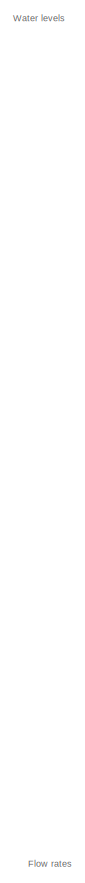
[diagram: root canvas - part 1/2, right side, full height]
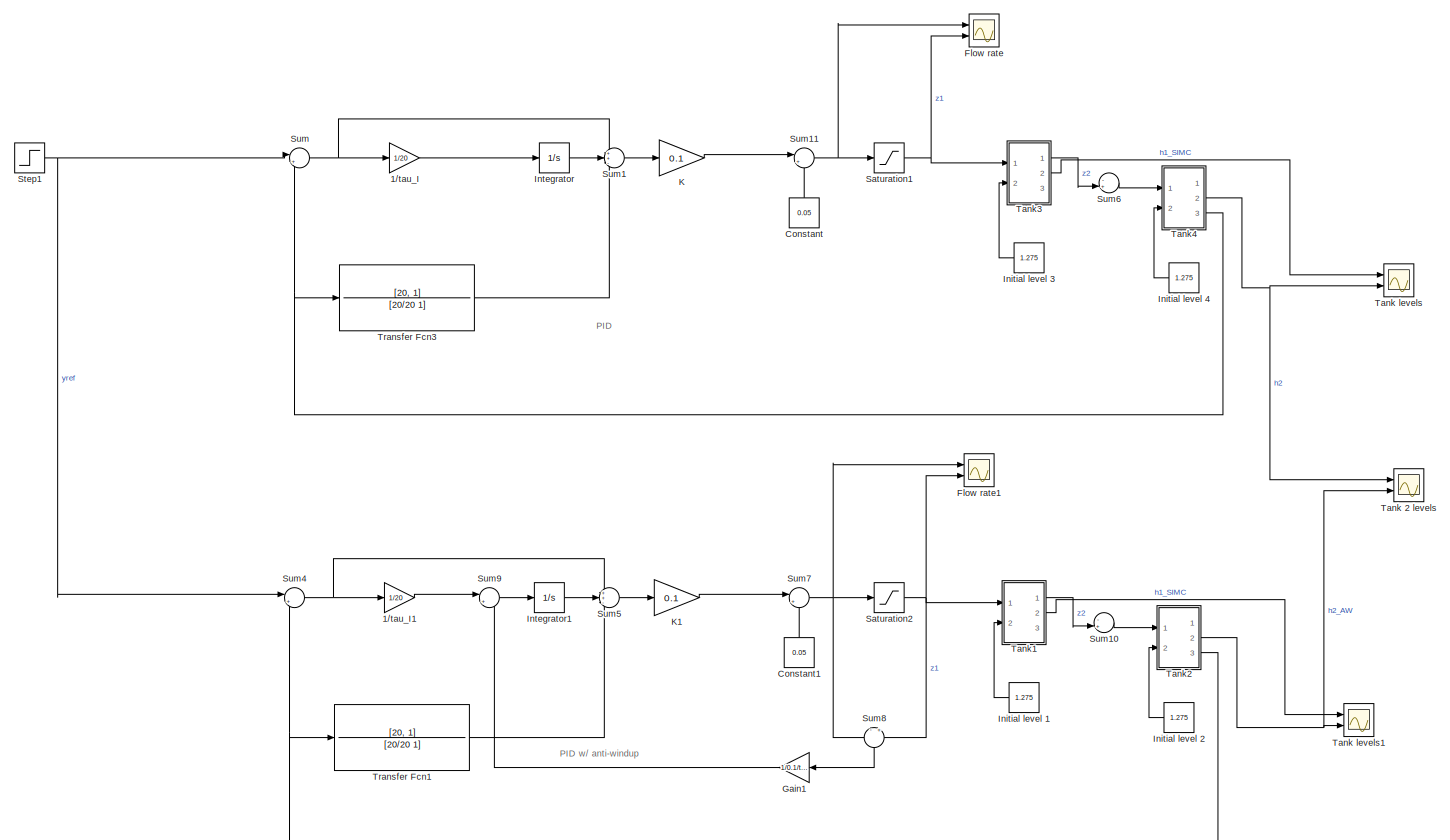
[diagram: root canvas - part 2/2, left side, full height]
MODEL slx_a2e490d1ccdc
KIND model
CONFIG AbsTol = auto
CONFIG EnableMultiTasking = off
CONFIG FixedStep = 0.1
CONFIG MaxStep = auto
CONFIG MinStep = auto
CONFIG RelTol = 1e-3
CONFIG SampleTimeConstraint = Unconstrained
CONFIG SolverName = ode23s
CONFIG StartTime = 0.0
CONFIG StopTime = 60*10
WORKSPACE source: MATLAB code (in-file)
WORKSPACE A1 = 1
WORKSPACE a1 = 0.1*0.1  (= 0.01)
WORKSPACE A2 = A1  (= 1)
WORKSPACE a2 = a1  (= 0.01)
WORKSPACE h10 = 1
WORKSPACE h20 = 1
BLOCK [Gain] 1//tau_I
  Gain = 1/20
BLOCK [Gain] 1//tau_I1
  Gain = 1/20
BLOCK [Constant] Constant
  NameLocation = right
  Value = 0.05
BLOCK [Constant] Constant1
  NameLocation = right
  Value = 0.05
BLOCK [Scope] Flow rate
  Floating = off
  NumInputPorts = 2
  Ports = [2]
  ScopeSpecificationString = Simulink.scopes.TimeScopeBlockCfg('CurrentConfiguration', extmgr.ConfigurationSet(extmgr.Configuration('Core','General UI',true),extmgr.Configuration('Core','Source UI',true),extmgr.Configuration('Sources','WiredSimulink',true),extmgr.Configuration('Visuals','Time Domain',true,'SerializedDisplays',{struct('MinYLimReal','0.03312','MaxYLimReal','0.13372','YLabelReal','','MinYLimMag','0.03312','MaxYL...<+1754ch>
BLOCK [Scope] Flow rate1
  Floating = off
  NumInputPorts = 2
  Ports = [2]
  ScopeSpecificationString = Simulink.scopes.TimeScopeBlockCfg('CurrentConfiguration', extmgr.ConfigurationSet(extmgr.Configuration('Core','General UI',true),extmgr.Configuration('Core','Source UI',true),extmgr.Configuration('Sources','WiredSimulink',true,'DataLoggingVariableName','ScopeData2'),extmgr.Configuration('Visuals','Time Domain',true,'SerializedDisplays',{struct('MinYLimReal','0.04163','MaxYLimReal','0.10897','YLabe...<+1430ch>
BLOCK [Gain] Gain1
  Gain = 1/0.1/tau_t
  NameLocation = top
BLOCK [Constant] Initial level 1
  NameLocation = top
  Value = 1.275
BLOCK [Constant] Initial level 2
  NameLocation = top
  Value = 1.275
BLOCK [Constant] Initial level 3
  NameLocation = top
  Value = 1.275
BLOCK [Constant] Initial level 4
  NameLocation = top
  Value = 1.275
BLOCK [Integrator] Integrator
  Ports = [1, 1]
BLOCK [Integrator] Integrator1
  Ports = [1, 1]
BLOCK [Gain] K
  Gain = 0.1
BLOCK [Gain] K1
  Gain = 0.1
BLOCK [Saturate] Saturation1
  LowerLimit = 0
  UpperLimit = 0.065
BLOCK [Saturate] Saturation2
  LowerLimit = 0
  UpperLimit = 0.065
BLOCK [Step] Step1
  After = 0.4
  SampleTime = 0
  Time = 120
BLOCK [Sum] Sum
  Inputs = |+-
  Ports = [2, 1]
BLOCK [Sum] Sum1
  Inputs = ++-
  Ports = [3, 1]
BLOCK [Sum] Sum10
  Inputs = -+|
  Ports = [2, 1]
BLOCK [Sum] Sum11
  Inputs = |++
  Ports = [2, 1]
BLOCK [Sum] Sum4
  Inputs = |+-
  Ports = [2, 1]
BLOCK [Sum] Sum5
  Inputs = ++-
  Ports = [3, 1]
BLOCK [Sum] Sum6
  Inputs = -+|
  Ports = [2, 1]
BLOCK [Sum] Sum7
  Inputs = |++
  Ports = [2, 1]
BLOCK [Sum] Sum8
  Inputs = -|+
  NameLocation = left
  Ports = [2, 1]
BLOCK [Sum] Sum9
  Inputs = |++
  Ports = [2, 1]
BLOCK [Scope] Tank 2 levels
  Floating = off
  NumInputPorts = 2
  Ports = [2]
  ScopeSpecificationString = Simulink.scopes.TimeScopeBlockCfg('CurrentConfiguration', extmgr.ConfigurationSet(extmgr.Configuration('Core','General UI',true),extmgr.Configuration('Core','Source UI',true),extmgr.Configuration('Sources','WiredSimulink',true,'DataLoggingVariableName','ScopeData4'),extmgr.Configuration('Visuals','Time Domain',true,'SerializedDisplays',{struct('MinYLimReal','1.202','MaxYLimReal','1.93192','YLabelR...<+1423ch>
BLOCK [Scope] Tank levels
  Floating = off
  NumInputPorts = 2
  Ports = [2]
  ScopeSpecificationString = Simulink.scopes.TimeScopeBlockCfg('CurrentConfiguration', extmgr.ConfigurationSet(extmgr.Configuration('Core','General UI',true),extmgr.Configuration('Core','Source UI',true),extmgr.Configuration('Sources','WiredSimulink',true,'DataLoggingVariableName','ScopeData1'),extmgr.Configuration('Visuals','Time Domain',true,'SerializedDisplays',{struct('MinYLimReal','1.17961','MaxYLimReal','2.13315','YLabe...<+1450ch>
BLOCK [Scope] Tank levels1
  Floating = off
  NumInputPorts = 2
  Ports = [2]
  ScopeSpecificationString = Simulink.scopes.TimeScopeBlockCfg('CurrentConfiguration', extmgr.ConfigurationSet(extmgr.Configuration('Core','General UI',true),extmgr.Configuration('Core','Source UI',true),extmgr.Configuration('Sources','WiredSimulink',true,'DataLoggingVariableName','ScopeData3'),extmgr.Configuration('Visuals','Time Domain',true,'SerializedDisplays',{struct('MinYLimReal','1.19802','MaxYLimReal','1.96782','YLabe...<+1455ch>
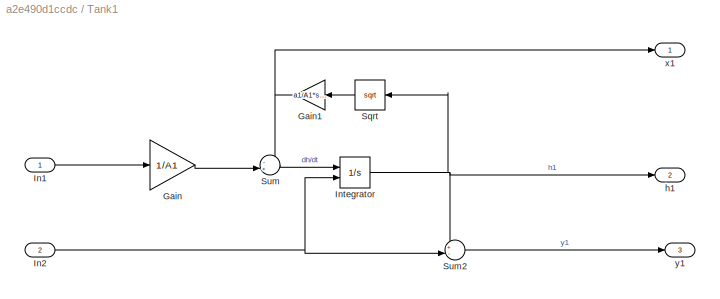
BLOCK [SubSystem] Tank1
  Ports = [2, 3]
  RequestExecContextInheritance = off
BLOCK [Gain] Tank1/Gain
  Gain = 1/A1
BLOCK [Gain] Tank1/Gain1
  Gain = a1/A1*sqrt(2*9.8)
  NameLocation = top
BLOCK [Inport] Tank1/In1
BLOCK [Inport] Tank1/In2
  Port = 2
BLOCK [Integrator] Tank1/Integrator
  InitialCondition = h10
  InitialConditionSource = external
  LimitOutput = on
  LowerSaturationLimit = 0
  Ports = [2, 1]
BLOCK [Sqrt] Tank1/Sqrt
  NameLocation = top
BLOCK [Sum] Tank1/Sum
  Inputs = -+|
  Ports = [2, 1]
BLOCK [Sum] Tank1/Sum2
  Inputs = +-|
  Ports = [2, 1]
BLOCK [Outport] Tank1/h1
  Port = 2
  VectorParamsAs1DForOutWhenUnconnected = off
BLOCK [Outport] Tank1/x1
  VectorParamsAs1DForOutWhenUnconnected = off
BLOCK [Outport] Tank1/y1
  Port = 3
  VectorParamsAs1DForOutWhenUnconnected = off
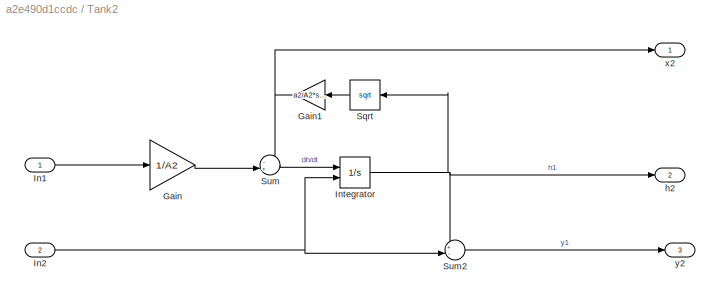
BLOCK [SubSystem] Tank2
  Ports = [2, 3]
  RequestExecContextInheritance = off
BLOCK [Gain] Tank2/Gain
  Gain = 1/A2
BLOCK [Gain] Tank2/Gain1
  Gain = a2/A2*sqrt(2*9.8)
  NameLocation = top
BLOCK [Inport] Tank2/In1
BLOCK [Inport] Tank2/In2
  Port = 2
BLOCK [Integrator] Tank2/Integrator
  InitialCondition = h10
  InitialConditionSource = external
  LimitOutput = on
  LowerSaturationLimit = 0
  Ports = [2, 1]
BLOCK [Sqrt] Tank2/Sqrt
  NameLocation = top
BLOCK [Sum] Tank2/Sum
  Inputs = -+|
  Ports = [2, 1]
BLOCK [Sum] Tank2/Sum2
  Inputs = +-|
  Ports = [2, 1]
BLOCK [Outport] Tank2/h2
  Port = 2
  VectorParamsAs1DForOutWhenUnconnected = off
BLOCK [Outport] Tank2/x2
  VectorParamsAs1DForOutWhenUnconnected = off
BLOCK [Outport] Tank2/y2
  Port = 3
  VectorParamsAs1DForOutWhenUnconnected = off
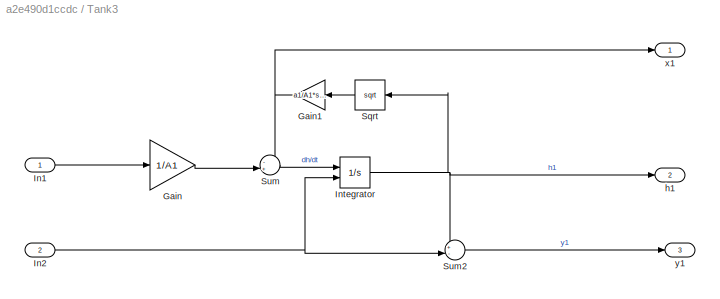
BLOCK [SubSystem] Tank3
  Ports = [2, 3]
  RequestExecContextInheritance = off
BLOCK [Gain] Tank3/Gain
  Gain = 1/A1
BLOCK [Gain] Tank3/Gain1
  Gain = a1/A1*sqrt(2*9.8)
  NameLocation = top
BLOCK [Inport] Tank3/In1
BLOCK [Inport] Tank3/In2
  Port = 2
BLOCK [Integrator] Tank3/Integrator
  InitialCondition = h10
  InitialConditionSource = external
  LimitOutput = on
  LowerSaturationLimit = 0
  Ports = [2, 1]
BLOCK [Sqrt] Tank3/Sqrt
  NameLocation = top
BLOCK [Sum] Tank3/Sum
  Inputs = -+|
  Ports = [2, 1]
BLOCK [Sum] Tank3/Sum2
  Inputs = +-|
  Ports = [2, 1]
BLOCK [Outport] Tank3/h1
  Port = 2
  VectorParamsAs1DForOutWhenUnconnected = off
BLOCK [Outport] Tank3/x1
  VectorParamsAs1DForOutWhenUnconnected = off
BLOCK [Outport] Tank3/y1
  Port = 3
  VectorParamsAs1DForOutWhenUnconnected = off
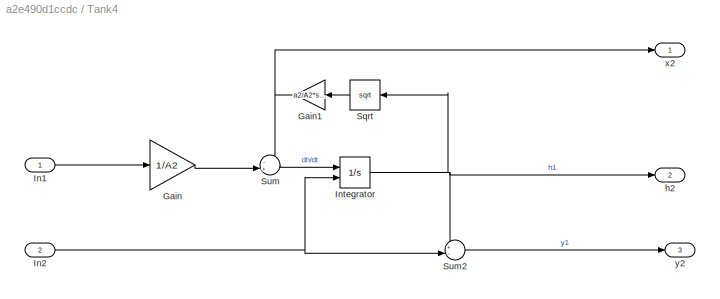
BLOCK [SubSystem] Tank4
  Ports = [2, 3]
  RequestExecContextInheritance = off
BLOCK [Gain] Tank4/Gain
  Gain = 1/A2
BLOCK [Gain] Tank4/Gain1
  Gain = a2/A2*sqrt(2*9.8)
  NameLocation = top
BLOCK [Inport] Tank4/In1
BLOCK [Inport] Tank4/In2
  Port = 2
BLOCK [Integrator] Tank4/Integrator
  InitialCondition = h10
  InitialConditionSource = external
  LimitOutput = on
  LowerSaturationLimit = 0
  Ports = [2, 1]
BLOCK [Sqrt] Tank4/Sqrt
  NameLocation = top
BLOCK [Sum] Tank4/Sum
  Inputs = -+|
  Ports = [2, 1]
BLOCK [Sum] Tank4/Sum2
  Inputs = +-|
  Ports = [2, 1]
BLOCK [Outport] Tank4/h2
  Port = 2
  VectorParamsAs1DForOutWhenUnconnected = off
BLOCK [Outport] Tank4/x2
  VectorParamsAs1DForOutWhenUnconnected = off
BLOCK [Outport] Tank4/y2
  Port = 3
  VectorParamsAs1DForOutWhenUnconnected = off
BLOCK [TransferFcn] Transfer Fcn1
  Denominator = [20/20 1]
  Numerator = [20, 1]
BLOCK [TransferFcn] Transfer Fcn3
  Denominator = [20/20 1]
  Numerator = [20, 1]
ANNOTATION (root): Flow rates
ANNOTATION (root): Water levels
ANNOTATION (root): PID
ANNOTATION (root): PID w/ anti-windup
LINE 1//tau_I1:1 -> Sum9:1
LINE 1//tau_I:1 -> Integrator:1
LINE Constant1:1 -> Sum7:2
LINE Constant:1 -> Sum11:2
LINE Gain1:1 -> Sum9:2
LINE Initial level 1:1 -> Tank1:2
LINE Initial level 2:1 -> Tank2:2
LINE Initial level 3:1 -> Tank3:2
LINE Initial level 4:1 -> Tank4:2
LINE Integrator1:1 -> Sum5:2
LINE Integrator:1 -> Sum1:2
LINE K1:1 -> Sum7:1
LINE K:1 -> Sum11:1
NET Saturation1:1 -> Flow rate:2, Tank3:1
NET Saturation2:1 -> Flow rate1:2, Sum8:2, Tank1:1
NET Step1:1 -> Sum4:1, Sum:1
LINE Sum10:1 -> Tank2:1
NET Sum11:1 -> Flow rate:1, Saturation1:1
LINE Sum1:1 -> K:1
NET Sum4:1 -> 1//tau_I1:1, Sum5:1
LINE Sum5:1 -> K1:1
LINE Sum6:1 -> Tank4:1
NET Sum7:1 -> Flow rate1:1, Saturation2:1, Sum8:1
LINE Sum8:1 -> Gain1:1
LINE Sum9:1 -> Integrator1:1
NET Sum:1 -> 1//tau_I:1, Sum1:1
NET Tank1/Gain1:1 -> Tank1/Sum:1, Tank1/x1:1
LINE Tank1/Gain:1 -> Tank1/Sum:2
LINE Tank1/In1:1 -> Tank1/Gain:1
NET Tank1/In2:1 -> Tank1/Integrator:2, Tank1/Sum2:2
NET Tank1/Integrator:1 -> Tank1/Sqrt:1, Tank1/Sum2:1, Tank1/h1:1
LINE Tank1/Sqrt:1 -> Tank1/Gain1:1
LINE Tank1/Sum2:1 -> Tank1/y1:1
LINE Tank1/Sum:1 -> Tank1/Integrator:1
LINE Tank1:1 -> Sum10:2
LINE Tank1:2 -> Tank levels1:1
NET Tank2/Gain1:1 -> Tank2/Sum:1, Tank2/x2:1
LINE Tank2/Gain:1 -> Tank2/Sum:2
LINE Tank2/In1:1 -> Tank2/Gain:1
NET Tank2/In2:1 -> Tank2/Integrator:2, Tank2/Sum2:2
NET Tank2/Integrator:1 -> Tank2/Sqrt:1, Tank2/Sum2:1, Tank2/h2:1
LINE Tank2/Sqrt:1 -> Tank2/Gain1:1
LINE Tank2/Sum2:1 -> Tank2/y2:1
LINE Tank2/Sum:1 -> Tank2/Integrator:1
NET Tank2:2 -> Tank 2 levels:2, Tank levels1:2
NET Tank2:3 -> Sum4:2, Transfer Fcn1:1
NET Tank3/Gain1:1 -> Tank3/Sum:1, Tank3/x1:1
LINE Tank3/Gain:1 -> Tank3/Sum:2
LINE Tank3/In1:1 -> Tank3/Gain:1
NET Tank3/In2:1 -> Tank3/Integrator:2, Tank3/Sum2:2
NET Tank3/Integrator:1 -> Tank3/Sqrt:1, Tank3/Sum2:1, Tank3/h1:1
LINE Tank3/Sqrt:1 -> Tank3/Gain1:1
LINE Tank3/Sum2:1 -> Tank3/y1:1
LINE Tank3/Sum:1 -> Tank3/Integrator:1
LINE Tank3:1 -> Sum6:2
LINE Tank3:2 -> Tank levels:1
NET Tank4/Gain1:1 -> Tank4/Sum:1, Tank4/x2:1
LINE Tank4/Gain:1 -> Tank4/Sum:2
LINE Tank4/In1:1 -> Tank4/Gain:1
NET Tank4/In2:1 -> Tank4/Integrator:2, Tank4/Sum2:2
NET Tank4/Integrator:1 -> Tank4/Sqrt:1, Tank4/Sum2:1, Tank4/h2:1
LINE Tank4/Sqrt:1 -> Tank4/Gain1:1
LINE Tank4/Sum2:1 -> Tank4/y2:1
LINE Tank4/Sum:1 -> Tank4/Integrator:1
NET Tank4:2 -> Tank 2 levels:1, Tank levels:2
NET Tank4:3 -> Sum:2, Transfer Fcn3:1
LINE Transfer Fcn1:1 -> Sum5:3
LINE Transfer Fcn3:1 -> Sum1:3
note: NET lines group one-source signal fan-out (src -> all destinations, sorted); 1:1 wires keep LINE
